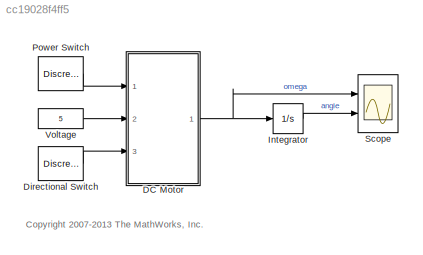
MODEL slx_cc19028f4ff5
KIND model
CONFIG AbsTol = auto
CONFIG EnableMultiTasking = on
CONFIG FixedStep = auto
CONFIG MaxStep = auto
CONFIG MinStep = auto
CONFIG RelTol = 1e-3
CONFIG SampleTimeConstraint = Unconstrained
CONFIG Solver = ode45
CONFIG SolverName = ode45
CONFIG StartTime = 0.0
CONFIG StopTime = 10
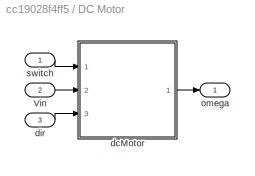
BLOCK [SubSystem] DC Motor
  Ports = [3, 1]
  RequestExecContextInheritance = off
  Variant = off
BLOCK [Inport] DC Motor/Vin
  IconDisplay = Port number
  Port = 2
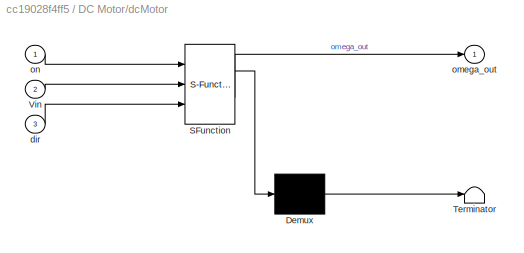
BLOCK [SubSystem] DC Motor/dcMotor
  ErrorFcn = Stateflow.Translate.translate
  PermitHierarchicalResolution = ExplicitOnly
  Ports = [3, 1]
  RequestExecContextInheritance = off
  SFBlockType = Chart
  TreatAsAtomicUnit = on
  Variant = off
BLOCK [Demux] DC Motor/dcMotor/ Demux 
  Outputs = 1
  Ports = [1, 1]
BLOCK [S-Function] DC Motor/dcMotor/ SFunction 
  EnableBusSupport = off
  FunctionName = sf_sfun
  Parameters = J,Kb,Kf,Km,L,R
  PortCounts = [3 2]
  Ports = [3, 2]
  SFcnIsStateOwnerBlock = off
  SFunctionDeploymentMode = off
  Tag = Stateflow S-Function sf_dcmotor 1
BLOCK [Terminator] DC Motor/dcMotor/ Terminator 
BLOCK [Inport] DC Motor/dcMotor/Vin
  IconDisplay = Port number
  Port = 2
BLOCK [Inport] DC Motor/dcMotor/dir
  IconDisplay = Port number
  Port = 3
BLOCK [Outport] DC Motor/dcMotor/omega_out
  IconDisplay = Port number
BLOCK [Inport] DC Motor/dcMotor/on
  IconDisplay = Port number
BLOCK [Inport] DC Motor/dir
  IconDisplay = Port number
  Port = 3
BLOCK [Outport] DC Motor/omega
  IconDisplay = Port number
BLOCK [Inport] DC Motor/switch
  IconDisplay = Port number
BLOCK [DiscretePulseGenerator] Directional Switch
  Period = 1
  Ports = [0, 1]
  PulseType = Time based
  PulseWidth = 50
BLOCK [Integrator] Integrator
  Ports = [1, 1]
BLOCK [DiscretePulseGenerator] Power Switch
  Period = 5
  PhaseDelay = 2.5
  Ports = [0, 1]
  PulseType = Time based
  PulseWidth = 50
BLOCK [Scope] Scope
  NumInputPorts = 2
  Ports = [2]
  ScopeSpecificationString = Simulink.scopes.TimeScopeBlockCfg('CurrentConfiguration', extmgr.ConfigurationSet(extmgr.Configuration('Core','General UI',true),extmgr.Configuration('Core','Source UI',true),extmgr.Configuration('Sources','WiredSimulink',true,'DataLoggingSaveFormat','StructureWithTime','DataLoggingLimitDataPoints',true,'DataLoggingDecimation','1'),extmgr.Configuration('Visuals','Time Domain',true,'SerializedDispl...<+2432ch>
BLOCK [Constant] Voltage
  Value = 5
ANNOTATION (root): <copyright redacted>
LINE DC Motor/Vin:1 -> DC Motor/dcMotor:2
LINE DC Motor/dcMotor:1 -> DC Motor/omega:1
LINE DC Motor/dir:1 -> DC Motor/dcMotor:3
LINE DC Motor/switch:1 -> DC Motor/dcMotor:1
NET DC Motor:1 -> Integrator:1, Scope:1
LINE Directional Switch:1 -> DC Motor:3
LINE Integrator:1 -> Scope:2
LINE Power Switch:1 -> DC Motor:1
LINE Voltage:1 -> DC Motor:2
note: NET lines group one-source signal fan-out (src -> all destinations, sorted); 1:1 wires keep LINE
CHART DC Motor/dcMotor states=6 transitions=9
  STATE_LABEL 'powerOn'
  STATE_LABEL 'down\ndu:\n% Derivatives\ncurr_dot = idotCalc(-Vin,curr,omega);\nomega_dot = wdotCalc(curr,omega);\n% Output\nomega_out=omega;'
  STATE_LABEL 'up\ndu:\n% Derivatives\ncurr_dot = idotCalc(Vin,curr,omega);\nomega_dot = wdotCalc(curr,omega);\n% Output\nomega_out=omega;'
  STATE_LABEL '[dir == 1]'
  STATE_LABEL '[dir==1]'
  STATE_LABEL '[dir==0]'
  STATE_LABEL 'down\ndu:\n% Derivatives\ncurr_dot = idotCalc(-Vin,curr,omega);\nomega_dot = wdotCalc(curr,omega);\n% Output\nomega_out=omega;'
  STATE_LABEL 'up\ndu:\n% Derivatives\ncurr_dot = idotCalc(Vin,curr,omega);\nomega_dot = wdotCalc(curr,omega);\n% Output\nomega_out=omega;'
  STATE_LABEL 'powerOff\ndu:\n% Derivatives\ncurr_dot = idotCalc(0,curr,omega);\nomega_dot = wdotCalc(curr,omega);\n% Output\nomega_out=omega;'
  STATE_LABEL 'der = wdotCalc(i,w)'
  STATE_LABEL '{der=Km/J.*i - Kf/J.*w;}'
  STATE_LABEL 'der = idotCalc(volts,i,w)'
  STATE_LABEL '{der=-R/L.*i - Kb/L.*w + 1.0/L.*volts;}'
